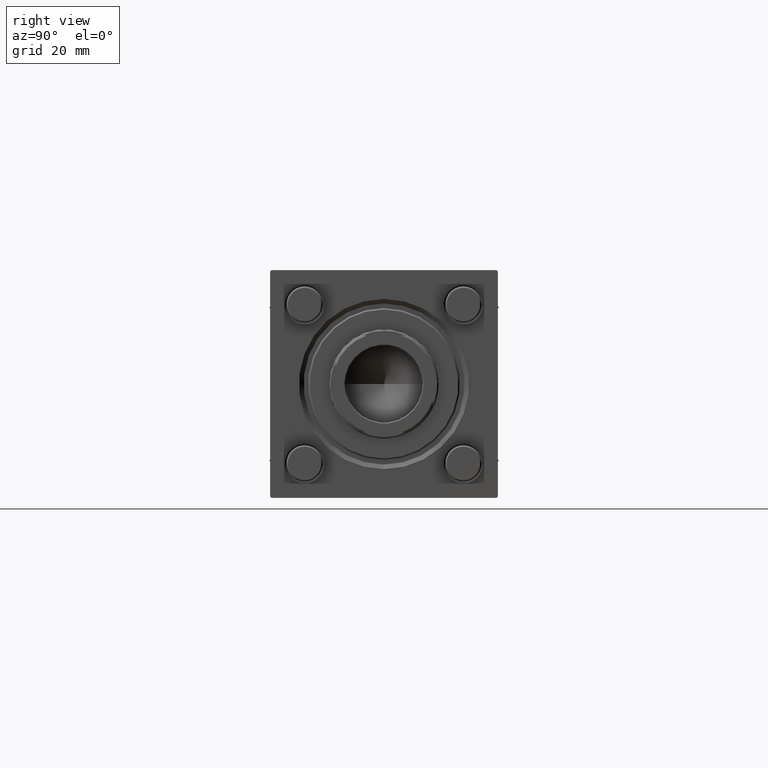
[diagram: clean part render]
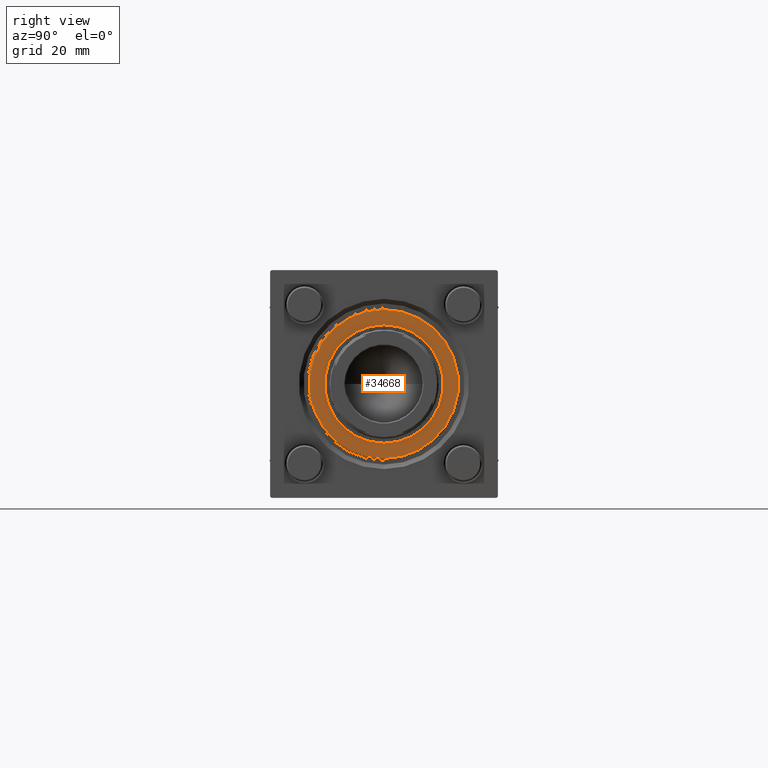
[diagram: same view with one face highlighted and labeled with its STEP entity id]
A machine part, right view. The second image highlights one B-rep face of the part: STEP entity #34668.
In plain terms, the highlighted planar face has unit normal (1, 0, 0).
Its self-contained STEP definition (entity closure, byte-faithful):
#531 = CARTESIAN_POINT ( 'NONE',  ( 19.50000000000000000, 0.000000000000000000, 37.69999999999999574 ) ) ;
#606 = DIRECTION ( 'NONE',  ( 0.000000000000000000, 0.000000000000000000, 1.000000000000000000 ) ) ;
#2037 = EDGE_CURVE ( 'NONE', #13613, #13375, #31019, .T. ) ;
#2498 = CIRCLE ( 'NONE', #34570, 19.50000000000000000 ) ;
#2860 = DIRECTION ( 'NONE',  ( 0.000000000000000000, 0.000000000000000000, 1.000000000000000000 ) ) ;
#3002 = DIRECTION ( 'NONE',  ( 1.000000000000000000, 0.000000000000000000, 0.000000000000000000 ) ) ;
#3284 = EDGE_LOOP ( 'NONE', ( #26544, #52571 ) ) ;
#5688 = CARTESIAN_POINT ( 'NONE',  ( 24.50000000000002487, 3.031000827889700833E-15, 37.69999999999999574 ) ) ;
#7178 = CARTESIAN_POINT ( 'NONE',  ( 0.000000000000000000, 0.000000000000000000, 37.69999999999999574 ) ) ;
#11061 = CIRCLE ( 'NONE', #22071, 19.50000000000000000 ) ;
#13375 = VERTEX_POINT ( 'NONE', #25248 ) ;
#13613 = VERTEX_POINT ( 'NONE', #5688 ) ;
#14572 = AXIS2_PLACEMENT_3D ( 'NONE', #7178, #2860, #41591 ) ;
#17446 = CARTESIAN_POINT ( 'NONE',  ( 0.000000000000000000, 0.000000000000000000, 37.69999999999999574 ) ) ;
#17748 = ORIENTED_EDGE ( 'NONE', *, *, #33114, .F. ) ;
#20081 = FACE_BOUND ( 'NONE', #42875, .T. ) ;
#20508 = DIRECTION ( 'NONE',  ( 0.000000000000000000, 0.000000000000000000, 1.000000000000000000 ) ) ;
#22071 = AXIS2_PLACEMENT_3D ( 'NONE', #56046, #20508, #3002 ) ;
#25248 = CARTESIAN_POINT ( 'NONE',  ( -24.50000000000002487, 0.000000000000000000, 37.69999999999999574 ) ) ;
#25288 = DIRECTION ( 'NONE',  ( 0.000000000000000000, 0.000000000000000000, 1.000000000000000000 ) ) ;
#26544 = ORIENTED_EDGE ( 'NONE', *, *, #29672, .T. ) ;
#27124 = AXIS2_PLACEMENT_3D ( 'NONE', #47077, #25288, #42779 ) ;
#29672 = EDGE_CURVE ( 'NONE', #13375, #13613, #55479, .T. ) ;
#31019 = CIRCLE ( 'NONE', #40196, 24.50000000000002487 ) ;
#33114 = EDGE_CURVE ( 'NONE', #38205, #33754, #2498, .T. ) ;
#33754 = VERTEX_POINT ( 'NONE', #43623 ) ;
#34570 = AXIS2_PLACEMENT_3D ( 'NONE', #17446, #35784, #56724 ) ;
#34668 = ADVANCED_FACE ( 'NONE', ( #20081, #45907 ), #41302, .T. ) ;
#35784 = DIRECTION ( 'NONE',  ( 0.000000000000000000, 0.000000000000000000, 1.000000000000000000 ) ) ;
#38205 = VERTEX_POINT ( 'NONE', #531 ) ;
#39360 = EDGE_CURVE ( 'NONE', #33754, #38205, #11061, .T. ) ;
#40196 = AXIS2_PLACEMENT_3D ( 'NONE', #53915, #606, #44768 ) ;
#40410 = ORIENTED_EDGE ( 'NONE', *, *, #39360, .F. ) ;
#41302 = PLANE ( 'NONE',  #14572 ) ;
#41591 = DIRECTION ( 'NONE',  ( 1.000000000000000000, 0.000000000000000000, -0.000000000000000000 ) ) ;
#42779 = DIRECTION ( 'NONE',  ( 1.000000000000000000, 0.000000000000000000, 0.000000000000000000 ) ) ;
#42875 = EDGE_LOOP ( 'NONE', ( #17748, #40410 ) ) ;
#43623 = CARTESIAN_POINT ( 'NONE',  ( -19.50000000000000000, 2.388061258337338939E-15, 37.69999999999999574 ) ) ;
#44768 = DIRECTION ( 'NONE',  ( 1.000000000000000000, 0.000000000000000000, 0.000000000000000000 ) ) ;
#45907 = FACE_OUTER_BOUND ( 'NONE', #3284, .T. ) ;
#47077 = CARTESIAN_POINT ( 'NONE',  ( 0.000000000000000000, 0.000000000000000000, 37.69999999999999574 ) ) ;
#52571 = ORIENTED_EDGE ( 'NONE', *, *, #2037, .T. ) ;
#53915 = CARTESIAN_POINT ( 'NONE',  ( 0.000000000000000000, 0.000000000000000000, 37.69999999999999574 ) ) ;
#55479 = CIRCLE ( 'NONE', #27124, 24.50000000000002487 ) ;
#56046 = CARTESIAN_POINT ( 'NONE',  ( 0.000000000000000000, 0.000000000000000000, 37.69999999999999574 ) ) ;
#56724 = DIRECTION ( 'NONE',  ( 1.000000000000000000, 0.000000000000000000, 0.000000000000000000 ) ) ;